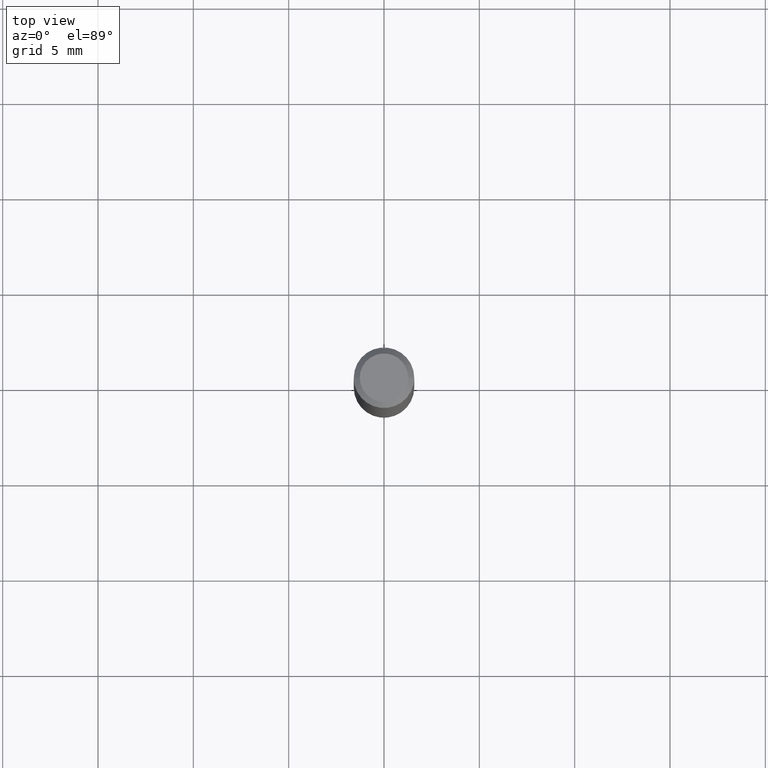
[diagram: clean part render]
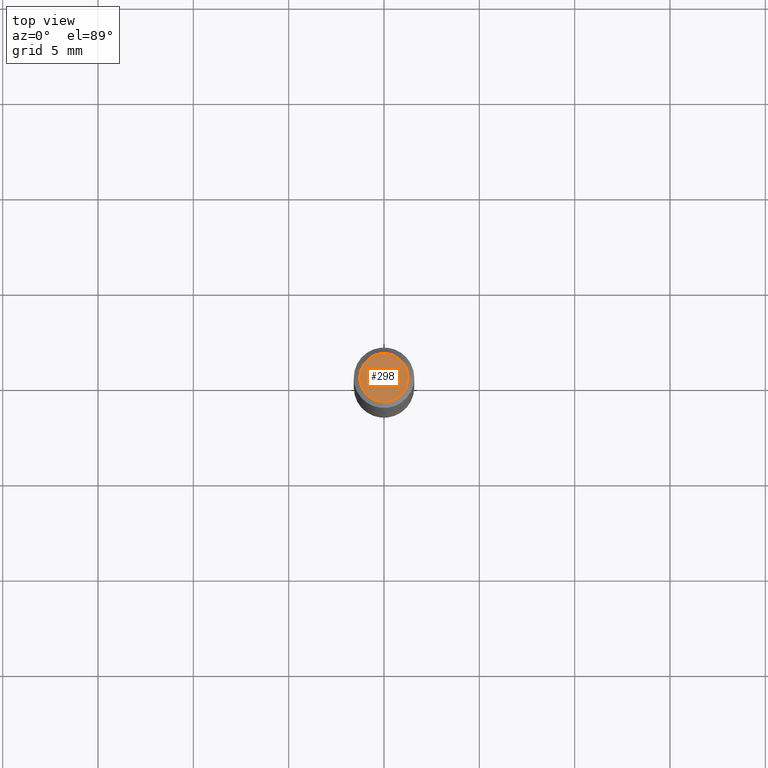
[diagram: same view with one face highlighted and labeled with its STEP entity id]
A machine part, top view. The second image highlights one B-rep face of the part: STEP entity #298.
In plain terms, the highlighted planar face has unit normal (0, -0, -1).
Its self-contained STEP definition (entity closure, byte-faithful):
#3 = AXIS2_PLACEMENT_3D ( 'NONE', #303, #451, #258 ) ;
#22 = CIRCLE ( 'NONE', #3, 0.04999999999999999584 ) ;
#53 = ORIENTED_EDGE ( 'NONE', *, *, #466, .T. ) ;
#77 = DIRECTION ( 'NONE',  ( -1.000000000000000000, 6.982962677686265922E-15, -4.876176775795935793E-29 ) ) ;
#90 = CARTESIAN_POINT ( 'NONE',  ( -8.265746106709734507E-48, 1.180129479067563789E-33, 3.380025165646692144E-19 ) ) ;
#94 = DIRECTION ( 'NONE',  ( 1.000000000000000000, -6.982962677686265922E-15, 4.876194921942043128E-29 ) ) ;
#130 = CIRCLE ( 'NONE', #461, 0.04999999999999999584 ) ;
#141 = CARTESIAN_POINT ( 'NONE',  ( -0.04999999999999999584, 3.709698922520826725E-16, 3.380025165621512536E-19 ) ) ;
#143 = PLANE ( 'NONE',  #228 ) ;
#149 = EDGE_LOOP ( 'NONE', ( #53, #281 ) ) ;
#168 = DIRECTION ( 'NONE',  ( -2.445468806185136597E-29, 3.491481338843145583E-15, 1.000000000000000000 ) ) ;
#193 = CARTESIAN_POINT ( 'NONE',  ( 0.04999999999999999584, -4.077247707424184705E-16, 3.380025165673154903E-19 ) ) ;
#203 = VERTEX_POINT ( 'NONE', #193 ) ;
#228 = AXIS2_PLACEMENT_3D ( 'NONE', #265, #416, #77 ) ;
#258 = DIRECTION ( 'NONE',  ( 1.000000000000000000, -6.982962677686265922E-15, 4.876194921942043128E-29 ) ) ;
#263 = FACE_OUTER_BOUND ( 'NONE', #149, .T. ) ;
#265 = CARTESIAN_POINT ( 'NONE',  ( -4.132873053354867254E-48, 5.900647395337818946E-34, 1.690012582823346072E-19 ) ) ;
#272 = EDGE_CURVE ( 'NONE', #203, #316, #22, .T. ) ;
#281 = ORIENTED_EDGE ( 'NONE', *, *, #272, .T. ) ;
#298 = ADVANCED_FACE ( 'NONE', ( #263 ), #143, .F. ) ;
#303 = CARTESIAN_POINT ( 'NONE',  ( -8.265746106709734507E-48, 1.180129479067563789E-33, 3.380025165646692144E-19 ) ) ;
#316 = VERTEX_POINT ( 'NONE', #141 ) ;
#416 = DIRECTION ( 'NONE',  ( 2.438088387897960049E-29, -3.491481338843145188E-15, -1.000000000000000000 ) ) ;
#451 = DIRECTION ( 'NONE',  ( -2.445468806185136597E-29, 3.491481338843145583E-15, 1.000000000000000000 ) ) ;
#461 = AXIS2_PLACEMENT_3D ( 'NONE', #90, #168, #94 ) ;
#466 = EDGE_CURVE ( 'NONE', #316, #203, #130, .T. ) ;